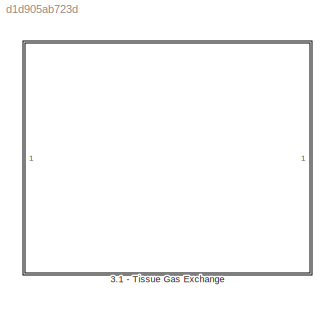
MODEL slx_d1d905ab723d
KIND model
CONFIG AbsTol = auto
CONFIG EnableMultiTasking = off
CONFIG FixedStep = auto
CONFIG MaxStep = auto
CONFIG MinStep = auto
CONFIG RelTol = 1e-3
CONFIG SampleTimeConstraint = Unconstrained
CONFIG Solver = VariableStepAuto
CONFIG SolverName = VariableStepAuto
CONFIG StartTime = 0.0
CONFIG StopTime = 10.0
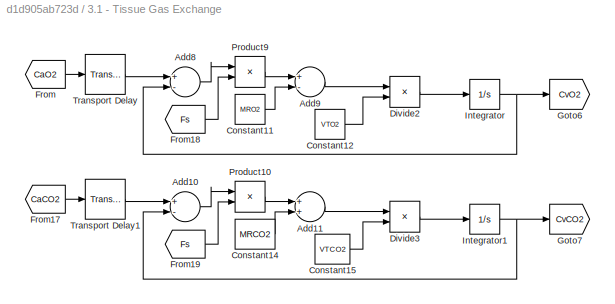
BLOCK [SubSystem] 3.1 - Tissue Gas Exchange
  Ports = []
  RequestExecContextInheritance = off
BLOCK [Sum] 3.1 - Tissue Gas Exchange/Add10
  InputSameDT = off
  Inputs = +-
  OutDataTypeStr = Inherit: Inherit via internal rule
  Ports = [2, 1]
  SaturateOnIntegerOverflow = off
BLOCK [Sum] 3.1 - Tissue Gas Exchange/Add11
  InputSameDT = off
  OutDataTypeStr = Inherit: Inherit via internal rule
  Ports = [2, 1]
  SaturateOnIntegerOverflow = off
BLOCK [Sum] 3.1 - Tissue Gas Exchange/Add8
  InputSameDT = off
  Inputs = +-
  OutDataTypeStr = Inherit: Inherit via internal rule
  Ports = [2, 1]
  SaturateOnIntegerOverflow = off
BLOCK [Sum] 3.1 - Tissue Gas Exchange/Add9
  InputSameDT = off
  Inputs = +-
  OutDataTypeStr = Inherit: Inherit via internal rule
  Ports = [2, 1]
  SaturateOnIntegerOverflow = off
BLOCK [Constant] 3.1 - Tissue Gas Exchange/Constant11
  SampleTime = Tsamp
  Value = MRO2
BLOCK [Constant] 3.1 - Tissue Gas Exchange/Constant12
  SampleTime = Tsamp
  Value = VTO2
BLOCK [Constant] 3.1 - Tissue Gas Exchange/Constant14
  SampleTime = Tsamp
  Value = MRCO2
BLOCK [Constant] 3.1 - Tissue Gas Exchange/Constant15
  SampleTime = Tsamp
  Value = VTCO2
BLOCK [Product] 3.1 - Tissue Gas Exchange/Divide2
  InputSameDT = off
  Inputs = */
  OutDataTypeStr = Inherit: Inherit via internal rule
  Ports = [2, 1]
  RndMeth = Floor
  SaturateOnIntegerOverflow = off
BLOCK [Product] 3.1 - Tissue Gas Exchange/Divide3
  InputSameDT = off
  Inputs = */
  OutDataTypeStr = Inherit: Inherit via internal rule
  Ports = [2, 1]
  RndMeth = Floor
  SaturateOnIntegerOverflow = off
BLOCK [From] 3.1 - Tissue Gas Exchange/From
  GotoTag = CaO2
  TagVisibility = global
BLOCK [From] 3.1 - Tissue Gas Exchange/From17
  GotoTag = CaCO2
  TagVisibility = global
BLOCK [From] 3.1 - Tissue Gas Exchange/From18
  GotoTag = Fs
  TagVisibility = global
BLOCK [From] 3.1 - Tissue Gas Exchange/From19
  GotoTag = Fs
  TagVisibility = global
BLOCK [Goto] 3.1 - Tissue Gas Exchange/Goto6
  GotoTag = CvO2
  TagVisibility = global
BLOCK [Goto] 3.1 - Tissue Gas Exchange/Goto7
  GotoTag = CvCO2
  TagVisibility = global
BLOCK [Integrator] 3.1 - Tissue Gas Exchange/Integrator
  InitialCondition = CvO2_IC
  Ports = [1, 1]
BLOCK [Integrator] 3.1 - Tissue Gas Exchange/Integrator1
  InitialCondition = CvCO2_IC
  Ports = [1, 1]
BLOCK [Product] 3.1 - Tissue Gas Exchange/Product10
  InputSameDT = off
  OutDataTypeStr = Inherit: Inherit via internal rule
  Ports = [2, 1]
  RndMeth = Floor
  SaturateOnIntegerOverflow = off
BLOCK [Product] 3.1 - Tissue Gas Exchange/Product9
  InputSameDT = off
  OutDataTypeStr = Inherit: Inherit via internal rule
  Ports = [2, 1]
  RndMeth = Floor
  SaturateOnIntegerOverflow = off
BLOCK [TransportDelay] 3.1 - Tissue Gas Exchange/Transport Delay
  DelayTime = Tau_LT
  InitialOutput = CaO2_IC
  Ports = [1, 1]
BLOCK [TransportDelay] 3.1 - Tissue Gas Exchange/Transport Delay1
  DelayTime = Tau_LT
  InitialOutput = CaCO2_IC
  Ports = [1, 1]
LINE 3.1 - Tissue Gas Exchange/Add10:1 -> 3.1 - Tissue Gas Exchange/Product10:1
LINE 3.1 - Tissue Gas Exchange/Add11:1 -> 3.1 - Tissue Gas Exchange/Divide3:1
LINE 3.1 - Tissue Gas Exchange/Add8:1 -> 3.1 - Tissue Gas Exchange/Product9:1
LINE 3.1 - Tissue Gas Exchange/Add9:1 -> 3.1 - Tissue Gas Exchange/Divide2:1
LINE 3.1 - Tissue Gas Exchange/Constant11:1 -> 3.1 - Tissue Gas Exchange/Add9:2
LINE 3.1 - Tissue Gas Exchange/Constant12:1 -> 3.1 - Tissue Gas Exchange/Divide2:2
LINE 3.1 - Tissue Gas Exchange/Constant14:1 -> 3.1 - Tissue Gas Exchange/Add11:2
LINE 3.1 - Tissue Gas Exchange/Constant15:1 -> 3.1 - Tissue Gas Exchange/Divide3:2
LINE 3.1 - Tissue Gas Exchange/Divide2:1 -> 3.1 - Tissue Gas Exchange/Integrator:1
LINE 3.1 - Tissue Gas Exchange/Divide3:1 -> 3.1 - Tissue Gas Exchange/Integrator1:1
LINE 3.1 - Tissue Gas Exchange/From17:1 -> 3.1 - Tissue Gas Exchange/Transport Delay1:1
LINE 3.1 - Tissue Gas Exchange/From18:1 -> 3.1 - Tissue Gas Exchange/Product9:2
LINE 3.1 - Tissue Gas Exchange/From19:1 -> 3.1 - Tissue Gas Exchange/Product10:2
LINE 3.1 - Tissue Gas Exchange/From:1 -> 3.1 - Tissue Gas Exchange/Transport Delay:1
NET 3.1 - Tissue Gas Exchange/Integrator1:1 -> 3.1 - Tissue Gas Exchange/Add10:2, 3.1 - Tissue Gas Exchange/Goto7:1
NET 3.1 - Tissue Gas Exchange/Integrator:1 -> 3.1 - Tissue Gas Exchange/Add8:2, 3.1 - Tissue Gas Exchange/Goto6:1
LINE 3.1 - Tissue Gas Exchange/Product10:1 -> 3.1 - Tissue Gas Exchange/Add11:1
LINE 3.1 - Tissue Gas Exchange/Product9:1 -> 3.1 - Tissue Gas Exchange/Add9:1
LINE 3.1 - Tissue Gas Exchange/Transport Delay1:1 -> 3.1 - Tissue Gas Exchange/Add10:1
LINE 3.1 - Tissue Gas Exchange/Transport Delay:1 -> 3.1 - Tissue Gas Exchange/Add8:1
note: NET lines group one-source signal fan-out (src -> all destinations, sorted); 1:1 wires keep LINE
